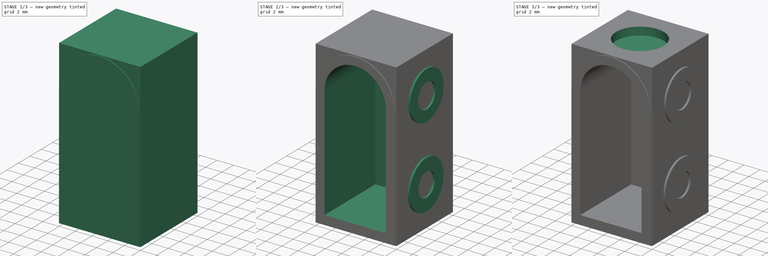
[diagram: build sequence overview — one tinted view per stage of 3, left to right]
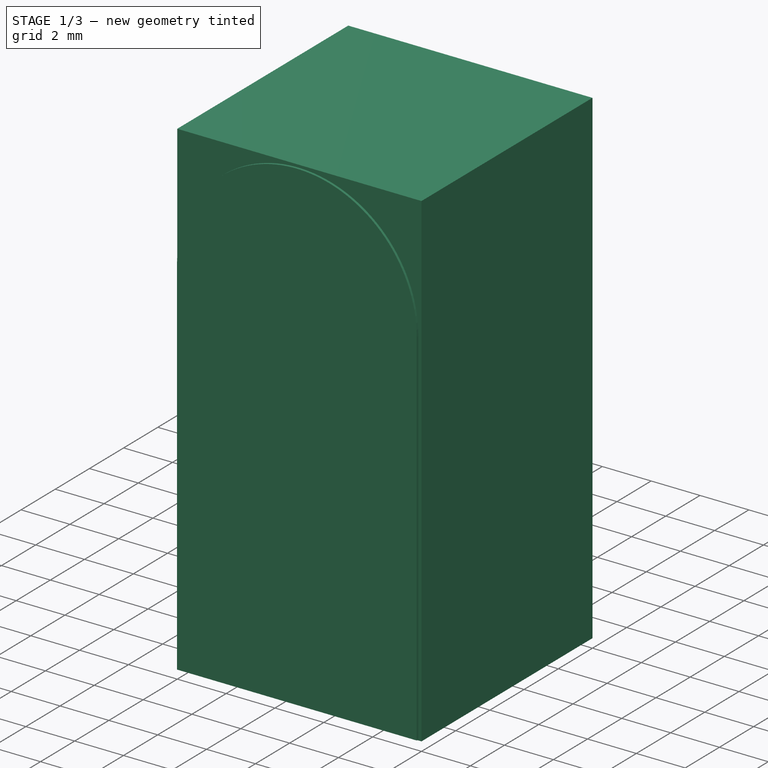
[diagram: stage 1 of 3 — iso view after this stage's code; geometry added in this stage tinted green]
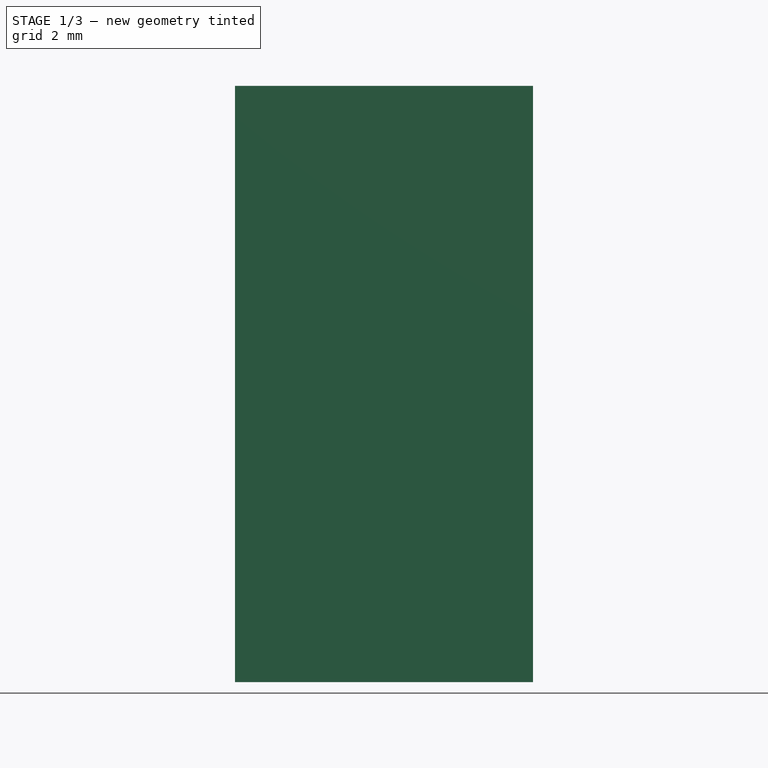
[diagram: stage 1 of 3 — front view after this stage's code; geometry added in this stage tinted green]
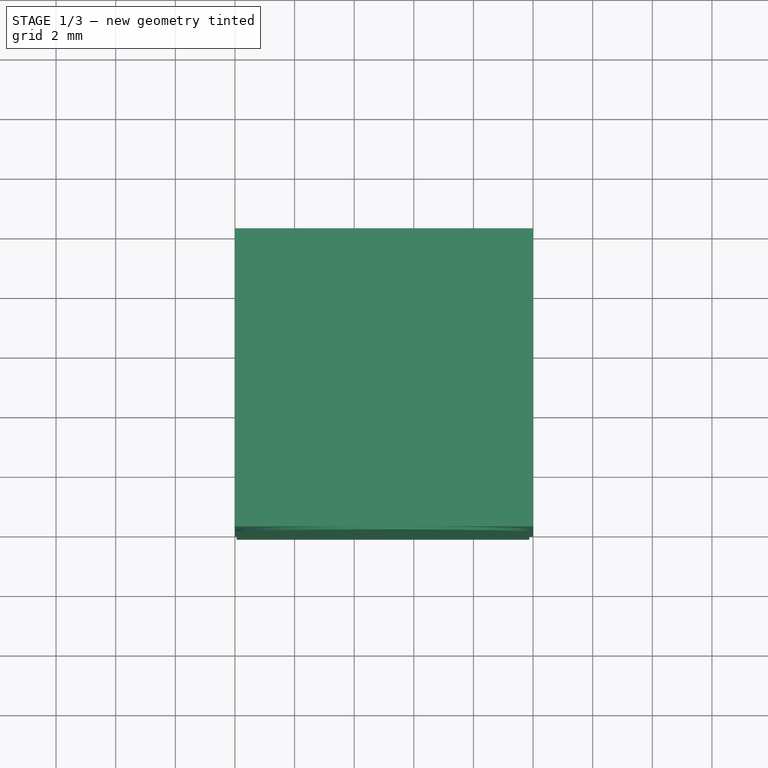
[diagram: stage 1 of 3 — top view after this stage's code; geometry added in this stage tinted green]
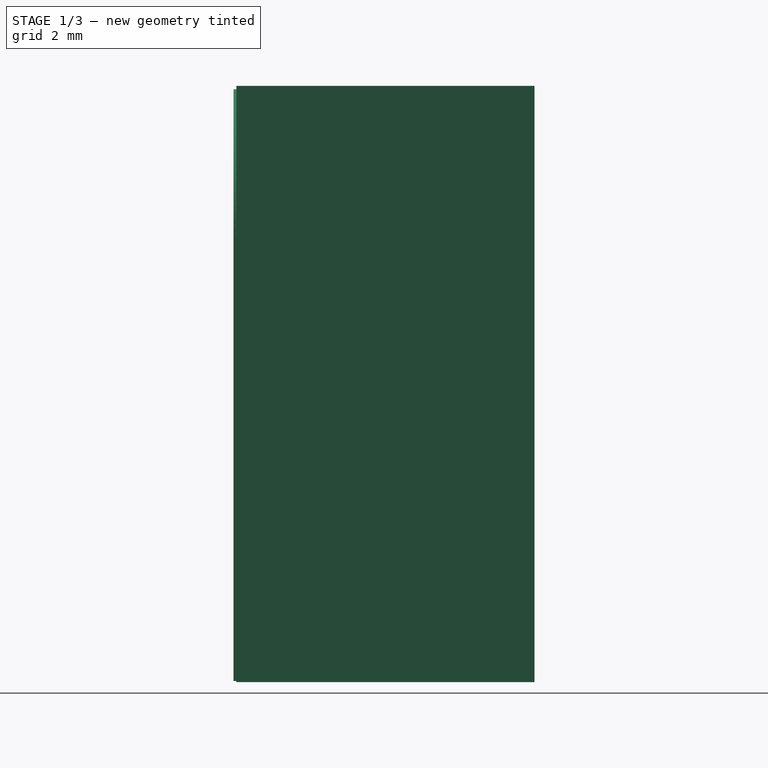
[diagram: stage 1 of 3 — right view after this stage's code; geometry added in this stage tinted green]
FCSTD DOCUMENT  (FreeCAD 0.16R6706 (Git))
Label: doortem-base
License: All rights reserved
LicenseURL: http://en.wikipedia.org/wiki/All_rights_reserved
objects: Sketcher::SketchObject×6, PartDesign::Pad×4, PartDesign::Pocket×2, Part::Box×1
note: 19 computed .brp shape members not serialized (recipe doc carries the construction recipe); baked Part::Feature solids carry a one-line shape summary decoded from their .brp

FEATURE [Part::Box] Box  label="Cube"
  Height = 20
  Length = 10
  Width = 10
FEATURE [Sketcher::SketchObject] Sketch002  label="Door Frame"
  Placement = pos=(0,0,0) rot=(1,0,0;1.5708rad)
  Support = -> Box [Face3]
  sketch-geometry (4):
    g0: ArcOfCircle CenterX=4.96552 CenterY=14.9829 CenterZ=0 NormalX=0 NormalY=0 NormalZ=1 Radius=4.90782 StartAngle=0 EndAngle=3.14159
    g1: LineSegment StartX=0.0577 StartY=14.9829 StartZ=0 EndX=0.0577 EndY=0.03838 EndZ=0
    g2: LineSegment StartX=9.87335 StartY=14.9829 StartZ=0 EndX=9.87335 EndY=0.03838 EndZ=0
    g3: LineSegment StartX=0.0577 StartY=0.03838 StartZ=0 EndX=9.87335 EndY=0.03838 EndZ=0
  constraints (7):
    c: Tangent(g0,g2) = 1.5708
    c: Tangent(g0,g1) = -1.5708
    c: Vertical(g1)
    c: Coincident(g3,g1)
    c: Coincident(g3,g2)
    c: Horizontal(g3)
    c: Vertical(g2)
FEATURE [PartDesign::Pad] Pad
  Length = 0.1
  Length2 = 100
  Sketch = -> Sketch002
  Type = 0
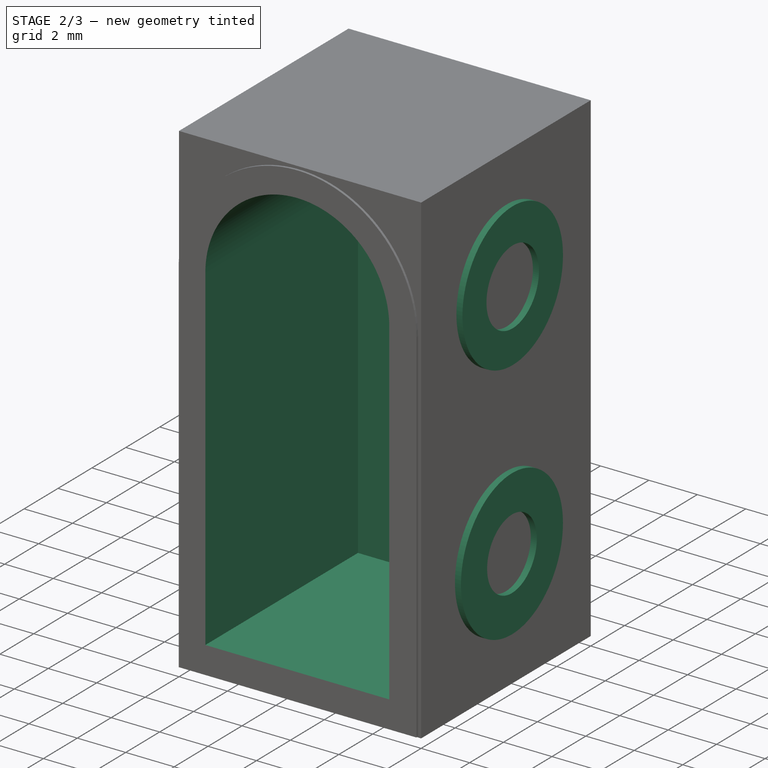
[diagram: stage 2 of 3 — iso view after this stage's code; geometry added in this stage tinted green]
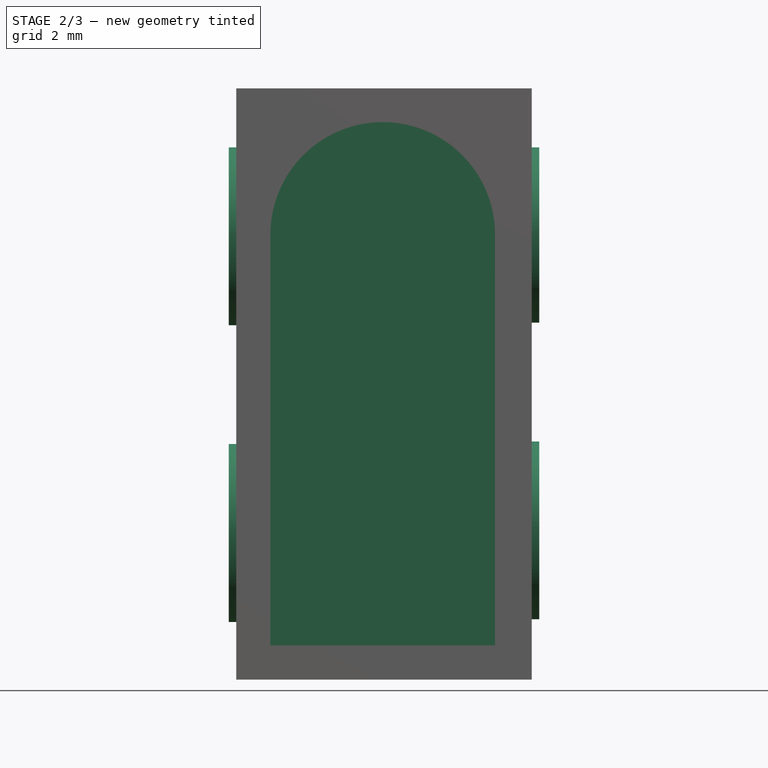
[diagram: stage 2 of 3 — front view after this stage's code; geometry added in this stage tinted green]
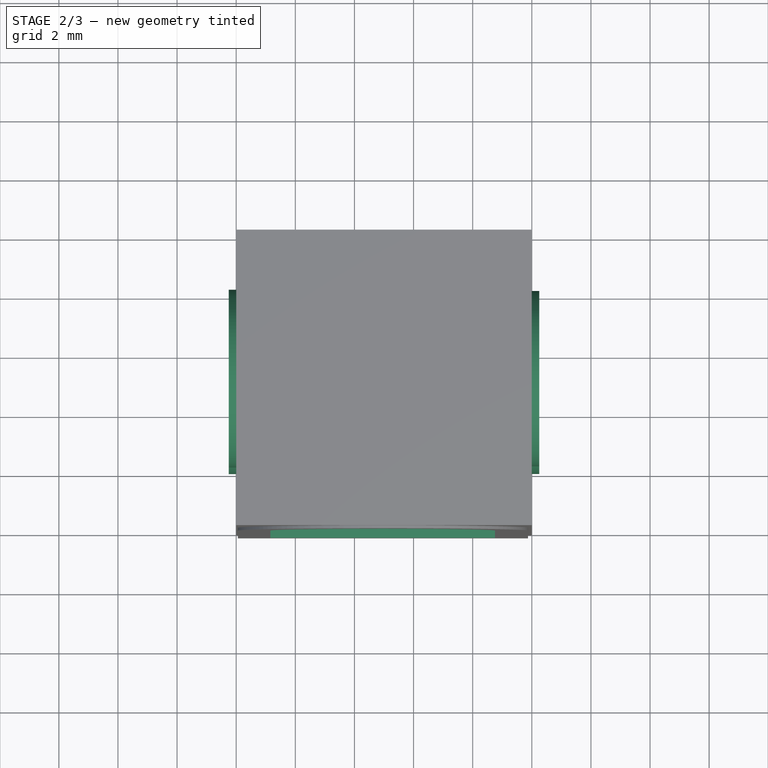
[diagram: stage 2 of 3 — top view after this stage's code; geometry added in this stage tinted green]
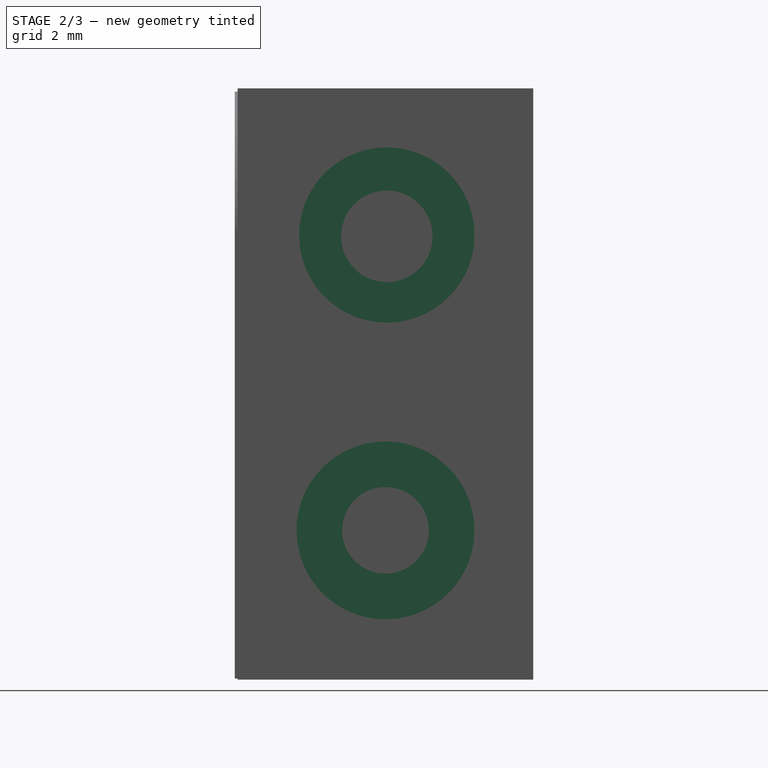
[diagram: stage 2 of 3 — right view after this stage's code; geometry added in this stage tinted green]
FEATURE [Sketcher::SketchObject] Sketch003  label="Doorway"
  Placement = pos=(0,-0.1,0) rot=(1,0,0;1.5708rad)
  Support = -> Pad [Face11]
  sketch-geometry (4):
    g0: ArcOfCircle CenterX=4.95649 CenterY=15.0607 CenterZ=0 NormalX=0 NormalY=0 NormalZ=1 Radius=3.79833 StartAngle=0 EndAngle=3.14159
    g1: LineSegment StartX=1.15816 StartY=15.0607 StartZ=0 EndX=1.15816 EndY=1.15924 EndZ=0
    g2: LineSegment StartX=8.75482 StartY=15.0607 StartZ=0 EndX=8.75482 EndY=1.15924 EndZ=0
    g3: LineSegment StartX=1.15816 StartY=1.15924 StartZ=0 EndX=8.75482 EndY=1.15924 EndZ=0
  constraints (7):
    c: Tangent(g0,g2) = 1.5708
    c: Tangent(g0,g1) = -1.5708
    c: Vertical(g1)
    c: Coincident(g3,g1)
    c: Coincident(g3,g2)
    c: Horizontal(g3)
    c: Vertical(g2)
FEATURE [PartDesign::Pocket] Pocket
  Length = 9
  Sketch = -> Sketch003
  Type = 0
FEATURE [Sketcher::SketchObject] Sketch  label="Side A"
  Placement = pos=(10,0,0) rot=(0.57735,0.57735,0.57735;2.0944rad)
  Support = -> Pocket [Face6]
  sketch-geometry (4):
    g0: Circle CenterX=5 CenterY=5.04796 CenterZ=0 NormalX=0 NormalY=0 NormalZ=1 Radius=3.00659
    g1: Circle CenterX=5 CenterY=5.04796 CenterZ=0 NormalX=0 NormalY=0 NormalZ=1 Radius=1.4651
    g2: Circle CenterX=5.04422 CenterY=15.0405 CenterZ=0 NormalX=0 NormalY=0 NormalZ=1 Radius=2.9637
    g3: Circle CenterX=5.04422 CenterY=14.9963 CenterZ=0 NormalX=0 NormalY=0 NormalZ=1 Radius=1.54751
  constraints (1):
    c: Coincident(g1,g0)
FEATURE [PartDesign::Pad] Pad001
  Length = 0.25
  Length2 = 100
  Sketch = -> Sketch
  Type = 0
FEATURE [Sketcher::SketchObject] Sketch001  label="Side B"
  Placement = pos=(0,0,0) rot=(0.57735,-0.57735,-0.57735;2.0944rad)
  Support = -> Pad001 [Face1]
  sketch-geometry (4):
    g0: Circle CenterX=-5.04422 CenterY=14.9963 CenterZ=0 NormalX=0 NormalY=0 NormalZ=1 Radius=3.00789
    g1: Circle CenterX=-5.04422 CenterY=14.9963 CenterZ=0 NormalX=0 NormalY=0 NormalZ=1 Radius=1.51367
    g2: Circle CenterX=-5 CenterY=4.95953 CenterZ=0 NormalX=0 NormalY=0 NormalZ=1 Radius=3.01179
    g3: Circle CenterX=-5 CenterY=4.95953 CenterZ=0 NormalX=0 NormalY=0 NormalZ=1 Radius=1.46176
  constraints (2):
    c: Coincident(g1,g0)
    c: Coincident(g3,g2)
FEATURE [PartDesign::Pad] Pad002
  Length = 0.25
  Length2 = 100
  Sketch = -> Sketch001
  Type = 0
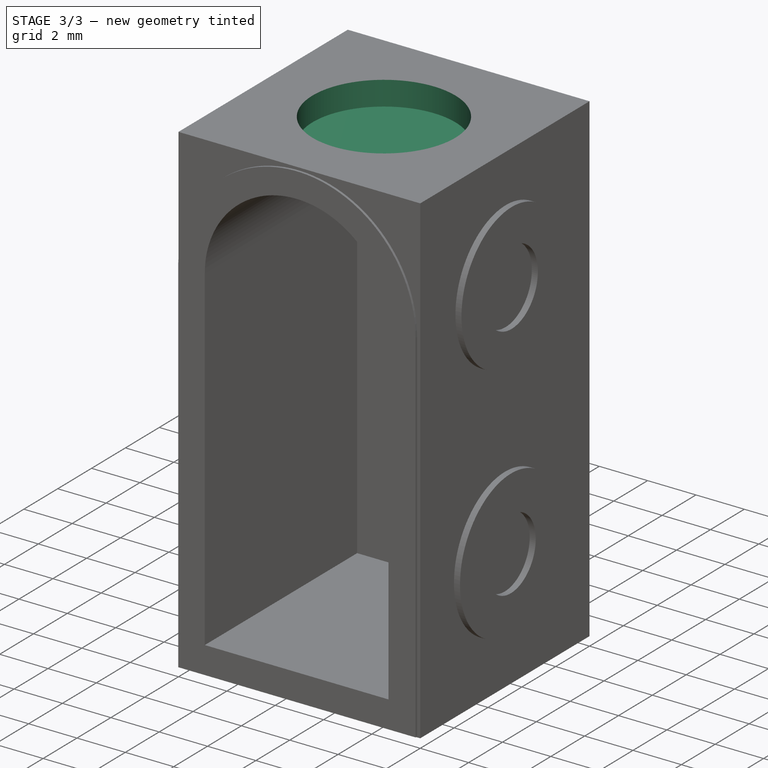
[diagram: stage 3 of 3 — iso view after this stage's code; geometry added in this stage tinted green]
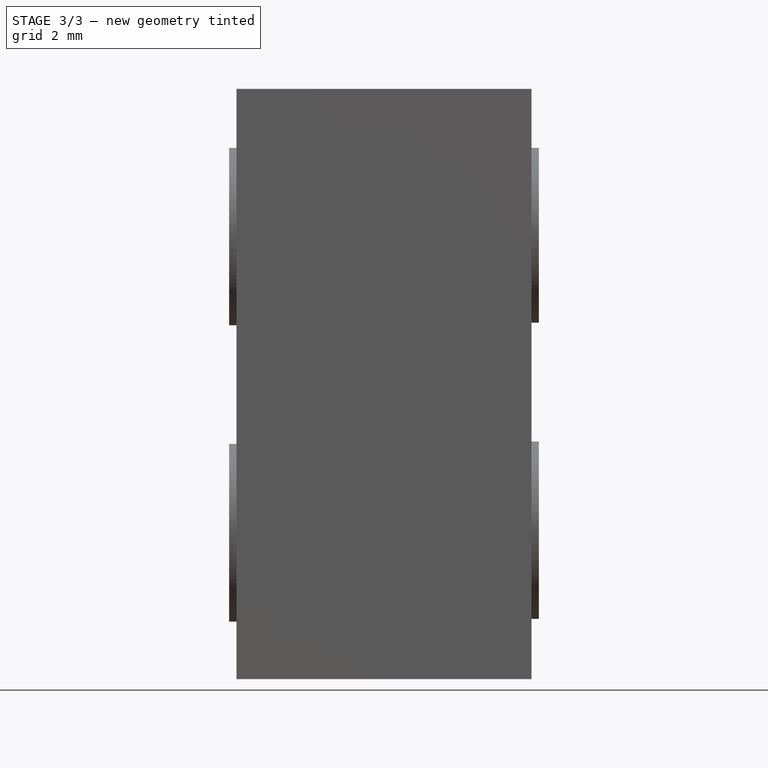
[diagram: stage 3 of 3 — front view after this stage's code; geometry added in this stage tinted green]
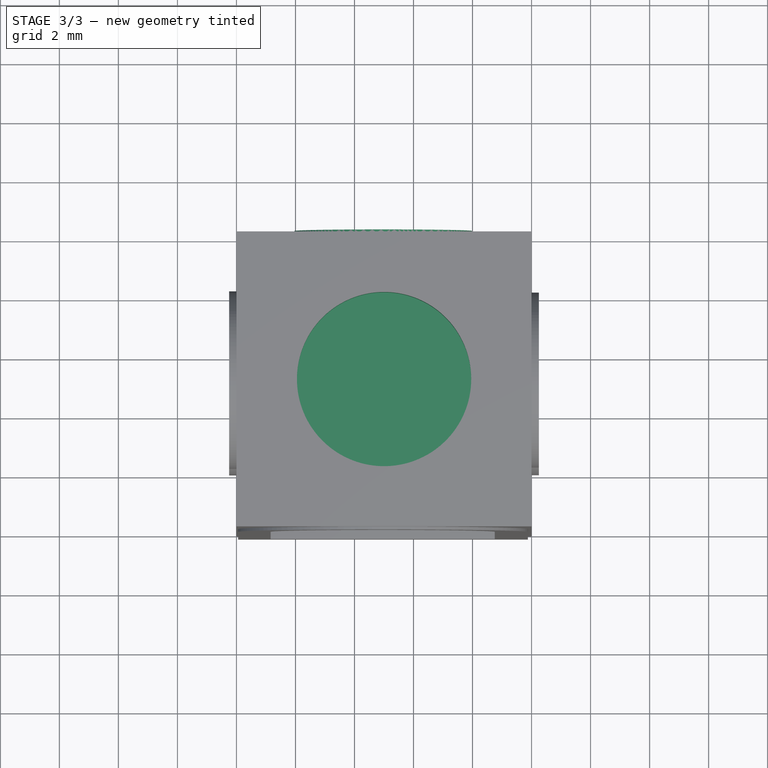
[diagram: stage 3 of 3 — top view after this stage's code; geometry added in this stage tinted green]
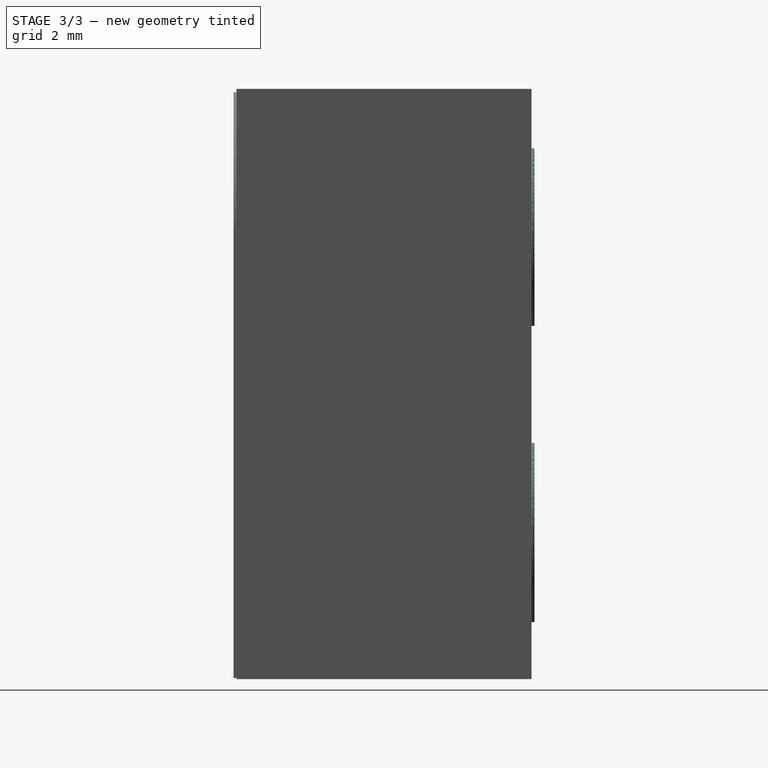
[diagram: stage 3 of 3 — right view after this stage's code; geometry added in this stage tinted green]
FEATURE [Sketcher::SketchObject] Sketch004
  Placement = pos=(0,10,0) rot=(0,0.707107,0.707107;3.14159rad)
  Support = -> Pad002 [Face10]
  sketch-geometry (4):
    g0: Circle CenterX=-4.97526 CenterY=14.9763 CenterZ=0 NormalX=0 NormalY=0 NormalZ=1 Radius=3.00692
    g1: Circle CenterX=-4.97526 CenterY=14.9763 CenterZ=0 NormalX=0 NormalY=0 NormalZ=1 Radius=1.50919
    g2: Circle CenterX=-5.04887 CenterY=4.96585 CenterZ=0 NormalX=0 NormalY=0 NormalZ=1 Radius=3.03406
    g3: Circle CenterX=-5.04887 CenterY=4.96585 CenterZ=0 NormalX=0 NormalY=0 NormalZ=1 Radius=1.48199
  constraints (2):
    c: Coincident(g1,g0)
    c: Coincident(g3,g2)
FEATURE [PartDesign::Pad] Pad003
  Length = 0.1
  Length2 = 100
  Sketch = -> Sketch004
  Type = 0
FEATURE [Sketcher::SketchObject] Sketch005
  Placement = pos=(0,0,20) rot=(0,0,1;0rad)
  Support = -> Pad003 [Face5]
  sketch-geometry (1):
    g0: Circle CenterX=5.00277 CenterY=4.99342 CenterZ=0 NormalX=0 NormalY=0 NormalZ=1 Radius=2.95277
FEATURE [PartDesign::Pocket] Pocket001
  Length = 1
  Sketch = -> Sketch005
  Type = 0
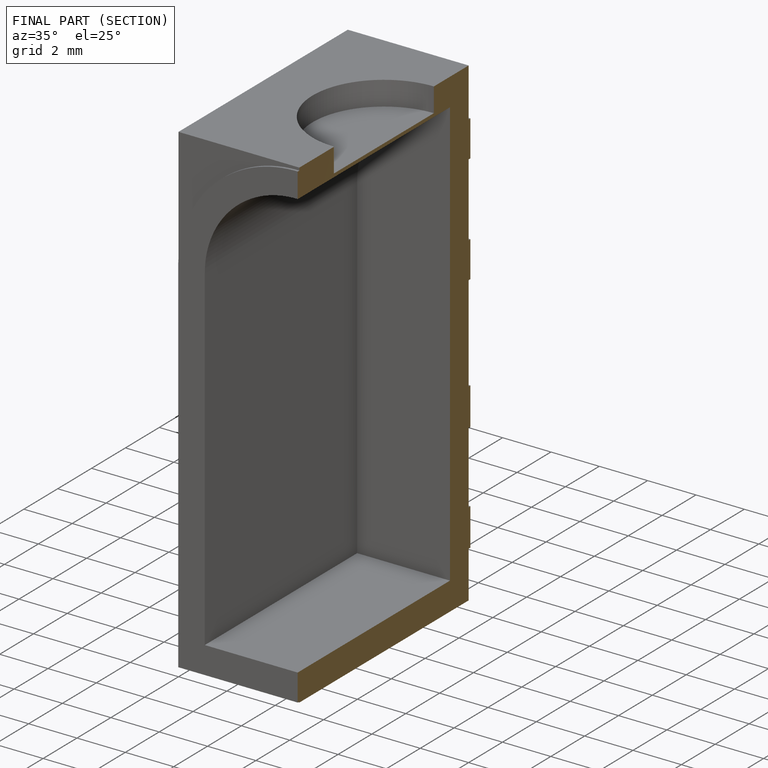
[diagram: finished part — half-section view (interior)]
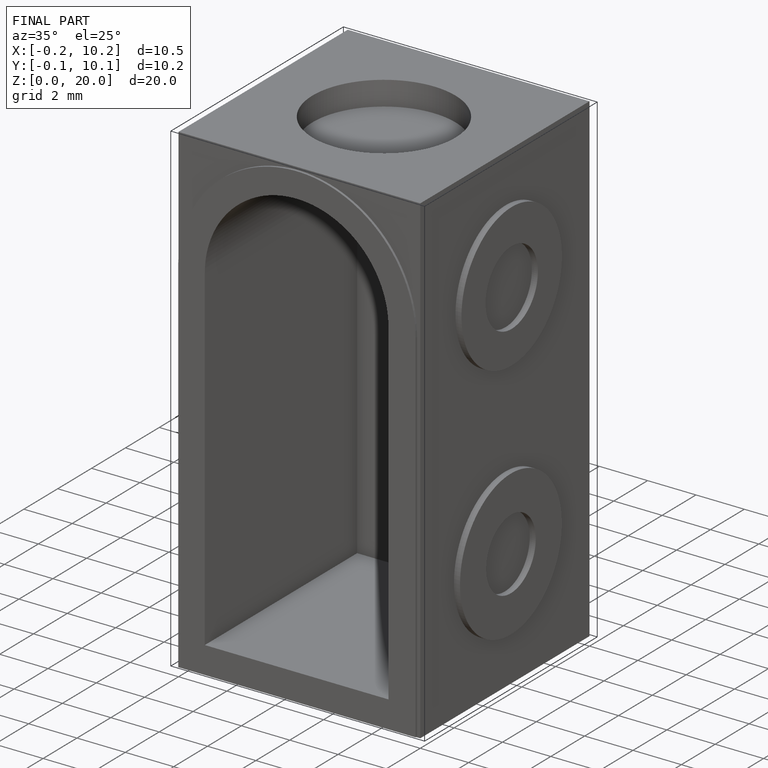
[diagram: finished part — iso view with bounding-box wireframe]
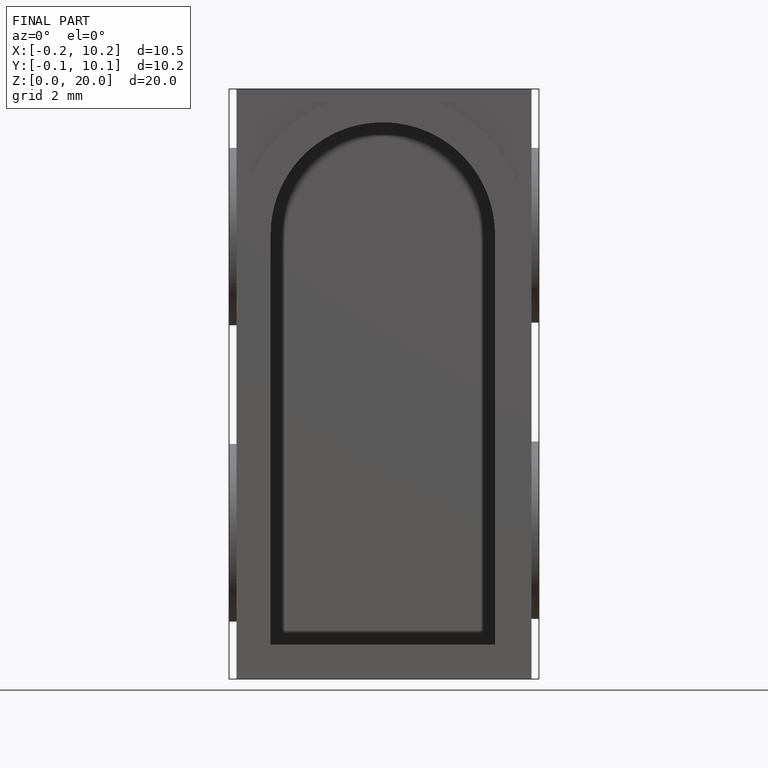
[diagram: finished part — front view with bounding-box wireframe]
